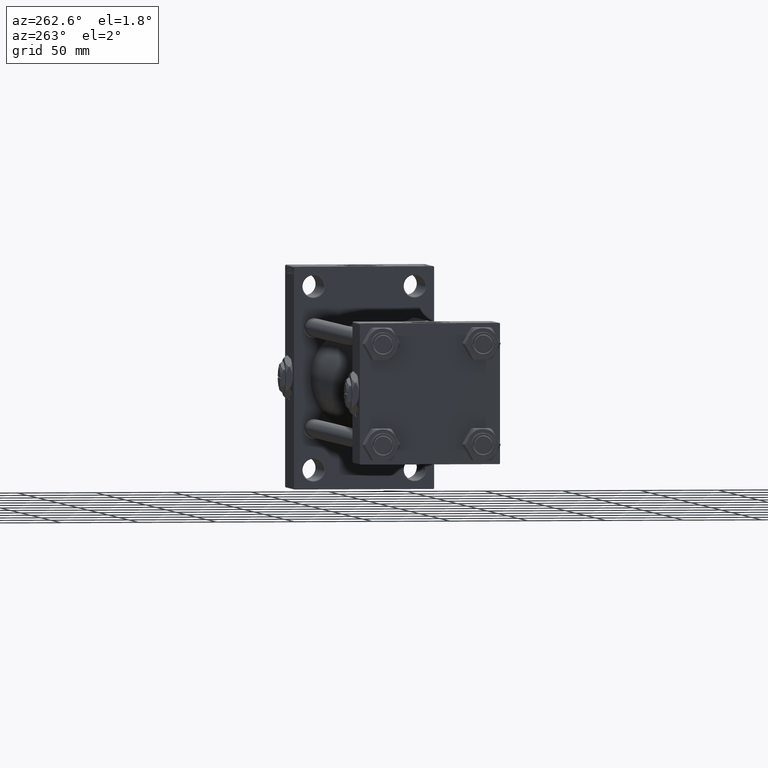
[diagram: clean part render]
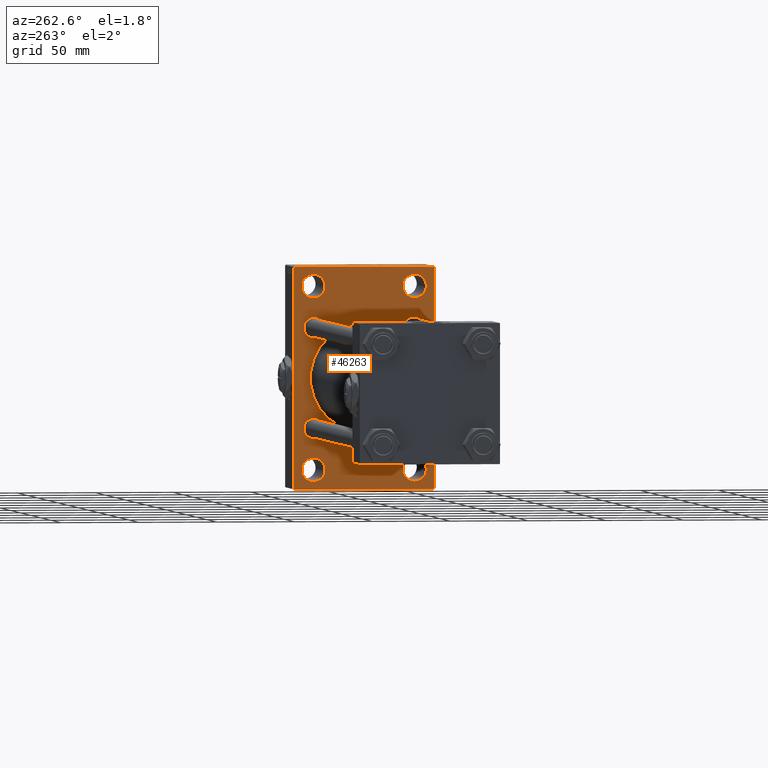
[diagram: same view with one face highlighted and labeled with its STEP entity id]
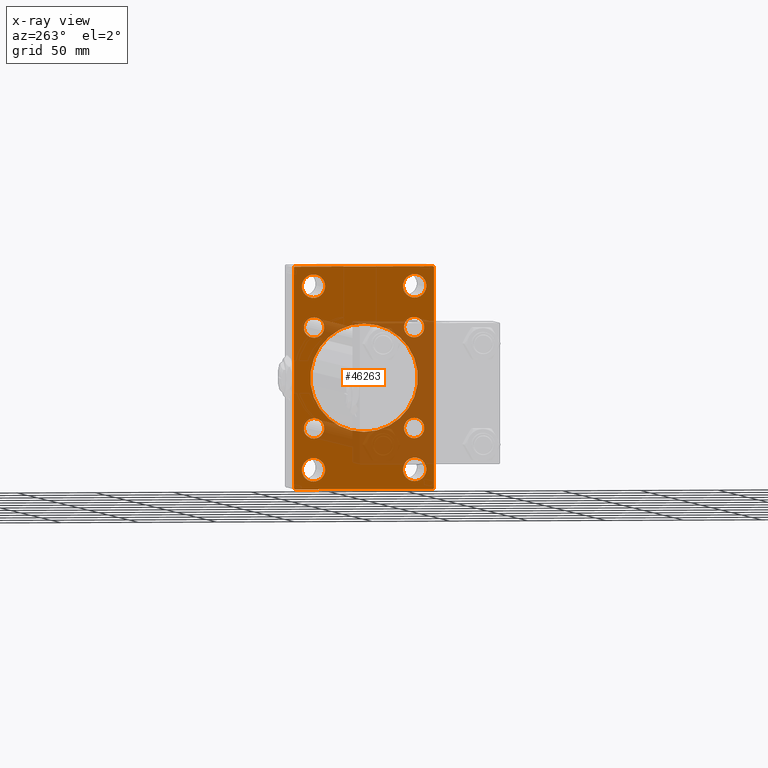
[diagram: x-ray of the same camera — body ghosted, the highlighted face saturated]
A machine part, auxiliary view. The second image highlights one B-rep face of the part: STEP entity #46263.
The next image is the same camera in x-ray: the body ghosted, the highlighted face saturated — about 31% of this face is hidden behind the body in this view.
In plain terms, the highlighted planar face has unit normal (-1, 0, 0).
Its self-contained STEP definition (entity closure, byte-faithful):
#58 = EDGE_LOOP ( 'NONE', ( #16935, #29937 ) ) ;
#163 = DIRECTION ( 'NONE',  ( 0.000000000000000000, 0.000000000000000000, 1.000000000000000000 ) ) ;
#796 = ORIENTED_EDGE ( 'NONE', *, *, #37364, .T. ) ;
#1456 = CARTESIAN_POINT ( 'NONE',  ( 325.9999999999999432, -32.50000000000000000, -58.49999999999999289 ) ) ;
#2104 = ORIENTED_EDGE ( 'NONE', *, *, #39844, .T. ) ;
#2377 = DIRECTION ( 'NONE',  ( 0.000000000000000000, 0.000000000000000000, 1.000000000000000000 ) ) ;
#2762 = DIRECTION ( 'NONE',  ( 0.000000000000000000, -1.000000000000000000, -1.541976423090495387E-16 ) ) ;
#2827 = CARTESIAN_POINT ( 'NONE',  ( 325.9999999999999432, -32.50000000000000000, 66.00000000000007105 ) ) ;
#3326 = CARTESIAN_POINT ( 'NONE',  ( 325.9999999999999432, -44.49999999999983658, 70.99999999999998579 ) ) ;
#3357 = CARTESIAN_POINT ( 'NONE',  ( 325.9999999999999432, 32.50000000000000711, 58.50000000000000711 ) ) ;
#3385 = CARTESIAN_POINT ( 'NONE',  ( 325.9999999999999432, -57.74999999999689493, -57.75000000000490985 ) ) ;
#3555 = CIRCLE ( 'NONE', #30575, 6.500000000000005329 ) ;
#3586 = CARTESIAN_POINT ( 'NONE',  ( 325.9999999999999432, 32.50000000000000711, -58.50000000000000000 ) ) ;
#3988 = VERTEX_POINT ( 'NONE', #6598 ) ;
#4949 = VERTEX_POINT ( 'NONE', #26099 ) ;
#5102 = ORIENTED_EDGE ( 'NONE', *, *, #44499, .T. ) ;
#5345 = DIRECTION ( 'NONE',  ( 0.000000000000000000, 0.000000000000000000, 1.000000000000000000 ) ) ;
#5403 = CIRCLE ( 'NONE', #28500, 6.499999999999999112 ) ;
#5925 = CARTESIAN_POINT ( 'NONE',  ( 325.9999999999999432, -32.14999999999997726, 25.65000000000000213 ) ) ;
#6038 = CARTESIAN_POINT ( 'NONE',  ( 325.9999999999999432, -32.50000000000000000, -66.00000000000005684 ) ) ;
#6145 = VECTOR ( 'NONE', #17555, 1000.000000000000000 ) ;
#6278 = DIRECTION ( 'NONE',  ( 0.000000000000000000, -4.886545002751570165E-17, -1.000000000000000000 ) ) ;
#6280 = VERTEX_POINT ( 'NONE', #26870 ) ;
#6353 = CIRCLE ( 'NONE', #44559, 6.500000000000005329 ) ;
#6380 = CARTESIAN_POINT ( 'NONE',  ( 325.9999999999999432, -2.602085213965210642E-15, 0.000000000000000000 ) ) ;
#6598 = CARTESIAN_POINT ( 'NONE',  ( 325.9999999999999432, -32.14999999999997726, -38.65000000000001990 ) ) ;
#6605 = ORIENTED_EDGE ( 'NONE', *, *, #6755, .T. ) ;
#6728 = VERTEX_POINT ( 'NONE', #7574 ) ;
#6755 = EDGE_CURVE ( 'NONE', #28301, #10204, #29021, .T. ) ;
#6758 = EDGE_CURVE ( 'NONE', #22412, #49301, #3555, .T. ) ;
#6809 = VERTEX_POINT ( 'NONE', #45455 ) ;
#6886 = FACE_BOUND ( 'NONE', #44257, .T. ) ;
#6921 = DIRECTION ( 'NONE',  ( 0.000000000000000000, 0.000000000000000000, -1.000000000000000000 ) ) ;
#7085 = VERTEX_POINT ( 'NONE', #34169 ) ;
#7260 = CARTESIAN_POINT ( 'NONE',  ( 325.9999999999999432, -32.50000000000000000, -58.49999999999999289 ) ) ;
#7391 = FACE_BOUND ( 'NONE', #41499, .T. ) ;
#7574 = CARTESIAN_POINT ( 'NONE',  ( 325.9999999999999432, 32.14999999999999147, 38.65000000000001279 ) ) ;
#7818 = CIRCLE ( 'NONE', #20575, 7.500000000000062172 ) ;
#7893 = CIRCLE ( 'NONE', #14255, 6.500000000000005329 ) ;
#8135 = VERTEX_POINT ( 'NONE', #18146 ) ;
#8691 = EDGE_CURVE ( 'NONE', #22148, #19997, #29663, .T. ) ;
#9003 = VERTEX_POINT ( 'NONE', #47829 ) ;
#9040 = LINE ( 'NONE', #47420, #10268 ) ;
#9130 = EDGE_LOOP ( 'NONE', ( #31665, #12229 ) ) ;
#9830 = DIRECTION ( 'NONE',  ( 0.000000000000000000, 0.000000000000000000, 1.000000000000000000 ) ) ;
#9871 = VERTEX_POINT ( 'NONE', #2827 ) ;
#10120 = CARTESIAN_POINT ( 'NONE',  ( 325.9999999999999432, 32.50000000000000711, -50.99999999999993605 ) ) ;
#10159 = CIRCLE ( 'NONE', #27675, 7.500000000000062172 ) ;
#10204 = VERTEX_POINT ( 'NONE', #10120 ) ;
#10232 = AXIS2_PLACEMENT_3D ( 'NONE', #45986, #33524, #26798 ) ;
#10268 = VECTOR ( 'NONE', #6278, 1000.000000000000000 ) ;
#10389 = FACE_BOUND ( 'NONE', #10787, .T. ) ;
#10479 = CARTESIAN_POINT ( 'NONE',  ( 325.9999999999999432, 45.00000000000001421, -70.99999999999998579 ) ) ;
#10718 = CARTESIAN_POINT ( 'NONE',  ( 325.9999999999999432, 45.00000000000002132, 71.00000000000000000 ) ) ;
#10787 = EDGE_LOOP ( 'NONE', ( #40670, #19987 ) ) ;
#10873 = CARTESIAN_POINT ( 'NONE',  ( 325.9999999999999432, 0.000000000000000000, 0.000000000000000000 ) ) ;
#10949 = AXIS2_PLACEMENT_3D ( 'NONE', #1456, #47060, #28841 ) ;
#11127 = FACE_BOUND ( 'NONE', #42504, .T. ) ;
#11370 = FACE_BOUND ( 'NONE', #26256, .T. ) ;
#11378 = EDGE_CURVE ( 'NONE', #10204, #28301, #35541, .T. ) ;
#11799 = DIRECTION ( 'NONE',  ( 0.000000000000000000, 0.000000000000000000, 1.000000000000000000 ) ) ;
#12229 = ORIENTED_EDGE ( 'NONE', *, *, #21224, .T. ) ;
#12460 = EDGE_CURVE ( 'NONE', #6280, #19997, #46767, .T. ) ;
#12775 = CARTESIAN_POINT ( 'NONE',  ( 325.9999999999999432, 32.50000000000000711, 50.99999999999995026 ) ) ;
#13076 = EDGE_LOOP ( 'NONE', ( #30763, #24680 ) ) ;
#13117 = EDGE_CURVE ( 'NONE', #6280, #23844, #13814, .T. ) ;
#13563 = EDGE_CURVE ( 'NONE', #4949, #22884, #28462, .T. ) ;
#13814 = LINE ( 'NONE', #17312, #6145 ) ;
#14041 = AXIS2_PLACEMENT_3D ( 'NONE', #25835, #33550, #37794 ) ;
#14255 = AXIS2_PLACEMENT_3D ( 'NONE', #19774, #15537, #11799 ) ;
#14476 = EDGE_CURVE ( 'NONE', #41160, #40427, #45994, .T. ) ;
#14551 = DIRECTION ( 'NONE',  ( 0.000000000000000000, 0.000000000000000000, 1.000000000000000000 ) ) ;
#14762 = VECTOR ( 'NONE', #2762, 1000.000000000000000 ) ;
#15277 = CARTESIAN_POINT ( 'NONE',  ( 325.9999999999999432, -32.14999999999997726, -25.65000000000000568 ) ) ;
#15537 = DIRECTION ( 'NONE',  ( 1.000000000000000000, -0.000000000000000000, 0.000000000000000000 ) ) ;
#16059 = EDGE_CURVE ( 'NONE', #6728, #16714, #26956, .T. ) ;
#16312 = VERTEX_POINT ( 'NONE', #22515 ) ;
#16562 = CARTESIAN_POINT ( 'NONE',  ( 325.9999999999999432, 32.14999999999999147, -38.65000000000001279 ) ) ;
#16714 = VERTEX_POINT ( 'NONE', #37408 ) ;
#16904 = ORIENTED_EDGE ( 'NONE', *, *, #21882, .T. ) ;
#16912 = EDGE_CURVE ( 'NONE', #3988, #41705, #42901, .T. ) ;
#16935 = ORIENTED_EDGE ( 'NONE', *, *, #30871, .T. ) ;
#17085 = AXIS2_PLACEMENT_3D ( 'NONE', #3586, #18794, #48709 ) ;
#17312 = CARTESIAN_POINT ( 'NONE',  ( 325.9999999999999432, -44.99999999999997158, 70.99999999999998579 ) ) ;
#17555 = DIRECTION ( 'NONE',  ( 0.000000000000000000, 0.000000000000000000, -1.000000000000000000 ) ) ;
#17812 = CARTESIAN_POINT ( 'NONE',  ( 325.9999999999999432, 57.74999999999808864, -57.75000000000289901 ) ) ;
#17972 = DIRECTION ( 'NONE',  ( 0.000000000000000000, 0.000000000000000000, 1.000000000000000000 ) ) ;
#18146 = CARTESIAN_POINT ( 'NONE',  ( 325.9999999999999432, 45.00000000000001421, -70.49999999999991473 ) ) ;
#18468 = EDGE_CURVE ( 'NONE', #9871, #43674, #7818, .T. ) ;
#18608 = CIRCLE ( 'NONE', #46464, 34.50000000000000000 ) ;
#18794 = DIRECTION ( 'NONE',  ( 1.000000000000000000, -0.000000000000000000, 0.000000000000000000 ) ) ;
#18935 = ORIENTED_EDGE ( 'NONE', *, *, #43905, .T. ) ;
#19036 = AXIS2_PLACEMENT_3D ( 'NONE', #47108, #28164, #43605 ) ;
#19096 = VECTOR ( 'NONE', #30000, 999.9999999999998863 ) ;
#19774 = CARTESIAN_POINT ( 'NONE',  ( 325.9999999999999432, -32.14999999999997726, 32.15000000000001279 ) ) ;
#19987 = ORIENTED_EDGE ( 'NONE', *, *, #22329, .T. ) ;
#19997 = VERTEX_POINT ( 'NONE', #3326 ) ;
#20575 = AXIS2_PLACEMENT_3D ( 'NONE', #41772, #38521, #163 ) ;
#21224 = EDGE_CURVE ( 'NONE', #22884, #4949, #36561, .T. ) ;
#21664 = VERTEX_POINT ( 'NONE', #47116 ) ;
#21787 = LINE ( 'NONE', #17812, #19096 ) ;
#21882 = EDGE_CURVE ( 'NONE', #22148, #6809, #44836, .T. ) ;
#22113 = AXIS2_PLACEMENT_3D ( 'NONE', #43902, #36175, #17972 ) ;
#22148 = VERTEX_POINT ( 'NONE', #41526 ) ;
#22329 = EDGE_CURVE ( 'NONE', #40427, #41160, #6353, .T. ) ;
#22412 = VERTEX_POINT ( 'NONE', #36748 ) ;
#22418 = EDGE_CURVE ( 'NONE', #8135, #21664, #21787, .T. ) ;
#22447 = CARTESIAN_POINT ( 'NONE',  ( 325.9999999999999432, 32.50000000000000711, -66.00000000000005684 ) ) ;
#22515 = CARTESIAN_POINT ( 'NONE',  ( 325.9999999999999432, 32.50000000000000711, 66.00000000000007105 ) ) ;
#22528 = DIRECTION ( 'NONE',  ( 1.000000000000000000, -0.000000000000000000, 0.000000000000000000 ) ) ;
#22594 = PLANE ( 'NONE',  #26312 ) ;
#22884 = VERTEX_POINT ( 'NONE', #6038 ) ;
#23088 = CARTESIAN_POINT ( 'NONE',  ( 325.9999999999999432, -57.75000000000022737, 57.74999999999942446 ) ) ;
#23121 = CARTESIAN_POINT ( 'NONE',  ( 325.9999999999999432, 32.14999999999999147, -25.64999999999999858 ) ) ;
#23240 = ORIENTED_EDGE ( 'NONE', *, *, #16912, .T. ) ;
#23844 = VERTEX_POINT ( 'NONE', #25915 ) ;
#24579 = AXIS2_PLACEMENT_3D ( 'NONE', #6380, #35813, #36785 ) ;
#24680 = ORIENTED_EDGE ( 'NONE', *, *, #27583, .T. ) ;
#24949 = CARTESIAN_POINT ( 'NONE',  ( 325.9999999999999432, 32.14999999999999147, 32.15000000000000568 ) ) ;
#25166 = EDGE_CURVE ( 'NONE', #38616, #16312, #35091, .T. ) ;
#25504 = ORIENTED_EDGE ( 'NONE', *, *, #18468, .T. ) ;
#25592 = DIRECTION ( 'NONE',  ( -1.000000000000000000, 0.000000000000000000, -0.000000000000000000 ) ) ;
#25683 = LINE ( 'NONE', #10479, #45210 ) ;
#25835 = CARTESIAN_POINT ( 'NONE',  ( 325.9999999999999432, 32.50000000000000711, -58.50000000000000000 ) ) ;
#25915 = CARTESIAN_POINT ( 'NONE',  ( 325.9999999999999432, -44.99999999999997158, -70.50000000000005684 ) ) ;
#26099 = CARTESIAN_POINT ( 'NONE',  ( 325.9999999999999432, -32.50000000000000000, -50.99999999999992184 ) ) ;
#26177 = CIRCLE ( 'NONE', #24579, 34.50000000000000000 ) ;
#26256 = EDGE_LOOP ( 'NONE', ( #47590, #6605 ) ) ;
#26312 = AXIS2_PLACEMENT_3D ( 'NONE', #10873, #25592, #30062 ) ;
#26580 = FACE_BOUND ( 'NONE', #27772, .T. ) ;
#26798 = DIRECTION ( 'NONE',  ( 0.000000000000000000, 0.000000000000000000, 1.000000000000000000 ) ) ;
#26870 = CARTESIAN_POINT ( 'NONE',  ( 325.9999999999999432, -44.99999999999997158, 70.49999999999987210 ) ) ;
#26956 = CIRCLE ( 'NONE', #10232, 6.499999999999999112 ) ;
#27367 = ORIENTED_EDGE ( 'NONE', *, *, #8691, .F. ) ;
#27583 = EDGE_CURVE ( 'NONE', #48692, #9003, #18608, .T. ) ;
#27675 = AXIS2_PLACEMENT_3D ( 'NONE', #47765, #44254, #44008 ) ;
#27772 = EDGE_LOOP ( 'NONE', ( #2104, #23240 ) ) ;
#28164 = DIRECTION ( 'NONE',  ( 1.000000000000000000, -0.000000000000000000, 0.000000000000000000 ) ) ;
#28301 = VERTEX_POINT ( 'NONE', #22447 ) ;
#28462 = CIRCLE ( 'NONE', #10949, 7.500000000000069278 ) ;
#28500 = AXIS2_PLACEMENT_3D ( 'NONE', #24949, #28697, #39917 ) ;
#28697 = DIRECTION ( 'NONE',  ( 1.000000000000000000, -0.000000000000000000, 0.000000000000000000 ) ) ;
#28758 = ORIENTED_EDGE ( 'NONE', *, *, #16059, .T. ) ;
#28841 = DIRECTION ( 'NONE',  ( 0.000000000000000000, 0.000000000000000000, 1.000000000000000000 ) ) ;
#29021 = CIRCLE ( 'NONE', #17085, 7.500000000000062172 ) ;
#29452 = CARTESIAN_POINT ( 'NONE',  ( 325.9999999999999432, 1.622946243093158675E-15, -34.50000000000000000 ) ) ;
#29663 = LINE ( 'NONE', #10718, #14762 ) ;
#29818 = FACE_BOUND ( 'NONE', #58, .T. ) ;
#29937 = ORIENTED_EDGE ( 'NONE', *, *, #25166, .T. ) ;
#30000 = DIRECTION ( 'NONE',  ( -0.000000000000000000, -0.7071067811865771047, -0.7071067811865180408 ) ) ;
#30062 = DIRECTION ( 'NONE',  ( -0.000000000000000000, 0.000000000000000000, 1.000000000000000000 ) ) ;
#30575 = AXIS2_PLACEMENT_3D ( 'NONE', #38221, #22528, #14551 ) ;
#30616 = CARTESIAN_POINT ( 'NONE',  ( 325.9999999999999432, 32.14999999999999147, -32.15000000000000568 ) ) ;
#30763 = ORIENTED_EDGE ( 'NONE', *, *, #42569, .T. ) ;
#30871 = EDGE_CURVE ( 'NONE', #16312, #38616, #44990, .T. ) ;
#31665 = ORIENTED_EDGE ( 'NONE', *, *, #13563, .T. ) ;
#31931 = AXIS2_PLACEMENT_3D ( 'NONE', #3357, #40261, #2377 ) ;
#32424 = DIRECTION ( 'NONE',  ( 0.000000000000000000, -1.000000000000000000, -1.541976423090495633E-16 ) ) ;
#32605 = VECTOR ( 'NONE', #48589, 1000.000000000000000 ) ;
#33044 = LINE ( 'NONE', #3385, #45352 ) ;
#33249 = ORIENTED_EDGE ( 'NONE', *, *, #22418, .T. ) ;
#33306 = FACE_OUTER_BOUND ( 'NONE', #37176, .T. ) ;
#33524 = DIRECTION ( 'NONE',  ( 1.000000000000000000, -0.000000000000000000, 0.000000000000000000 ) ) ;
#33550 = DIRECTION ( 'NONE',  ( 1.000000000000000000, -0.000000000000000000, 0.000000000000000000 ) ) ;
#33583 = DIRECTION ( 'NONE',  ( 1.000000000000000000, 0.000000000000000000, 0.000000000000000000 ) ) ;
#33619 = DIRECTION ( 'NONE',  ( 1.000000000000000000, -0.000000000000000000, 0.000000000000000000 ) ) ;
#33915 = DIRECTION ( 'NONE',  ( 0.000000000000000000, 0.000000000000000000, 1.000000000000000000 ) ) ;
#34024 = AXIS2_PLACEMENT_3D ( 'NONE', #30616, #33619, #45829 ) ;
#34169 = CARTESIAN_POINT ( 'NONE',  ( 325.9999999999999432, -44.49999999999994316, -71.00000000000000000 ) ) ;
#35091 = CIRCLE ( 'NONE', #31931, 7.500000000000062172 ) ;
#35541 = CIRCLE ( 'NONE', #14041, 7.500000000000062172 ) ;
#35798 = EDGE_CURVE ( 'NONE', #43674, #9871, #10159, .T. ) ;
#35813 = DIRECTION ( 'NONE',  ( 1.000000000000000000, 0.000000000000000000, 0.000000000000000000 ) ) ;
#36175 = DIRECTION ( 'NONE',  ( 1.000000000000000000, -0.000000000000000000, 0.000000000000000000 ) ) ;
#36271 = ORIENTED_EDGE ( 'NONE', *, *, #43956, .T. ) ;
#36561 = CIRCLE ( 'NONE', #43712, 7.500000000000069278 ) ;
#36748 = CARTESIAN_POINT ( 'NONE',  ( 325.9999999999999432, -32.14999999999997726, 38.65000000000002700 ) ) ;
#36785 = DIRECTION ( 'NONE',  ( 0.000000000000000000, 0.000000000000000000, -1.000000000000000000 ) ) ;
#37030 = DIRECTION ( 'NONE',  ( 0.000000000000000000, -0.7071067811865965336, 0.7071067811864985009 ) ) ;
#37176 = EDGE_LOOP ( 'NONE', ( #42552, #5102, #45935, #46301, #27367, #16904, #36271, #33249 ) ) ;
#37364 = EDGE_CURVE ( 'NONE', #16714, #6728, #5403, .T. ) ;
#37408 = CARTESIAN_POINT ( 'NONE',  ( 325.9999999999999432, 32.14999999999999147, 25.65000000000000213 ) ) ;
#37417 = DIRECTION ( 'NONE',  ( 1.000000000000000000, -0.000000000000000000, 0.000000000000000000 ) ) ;
#37794 = DIRECTION ( 'NONE',  ( 0.000000000000000000, 0.000000000000000000, 1.000000000000000000 ) ) ;
#37829 = CARTESIAN_POINT ( 'NONE',  ( 325.9999999999999432, -2.602085213965210642E-15, 0.000000000000000000 ) ) ;
#38221 = CARTESIAN_POINT ( 'NONE',  ( 325.9999999999999432, -32.14999999999997726, 32.15000000000001279 ) ) ;
#38521 = DIRECTION ( 'NONE',  ( 1.000000000000000000, -0.000000000000000000, 0.000000000000000000 ) ) ;
#38616 = VERTEX_POINT ( 'NONE', #12775 ) ;
#38898 = ORIENTED_EDGE ( 'NONE', *, *, #6758, .T. ) ;
#39238 = CARTESIAN_POINT ( 'NONE',  ( 325.9999999999999432, 32.50000000000000711, 58.50000000000000711 ) ) ;
#39485 = DIRECTION ( 'NONE',  ( 1.000000000000000000, -0.000000000000000000, 0.000000000000000000 ) ) ;
#39782 = EDGE_CURVE ( 'NONE', #21664, #7085, #25683, .T. ) ;
#39844 = EDGE_CURVE ( 'NONE', #41705, #3988, #43611, .T. ) ;
#39917 = DIRECTION ( 'NONE',  ( 0.000000000000000000, 0.000000000000000000, 1.000000000000000000 ) ) ;
#40261 = DIRECTION ( 'NONE',  ( 1.000000000000000000, -0.000000000000000000, 0.000000000000000000 ) ) ;
#40427 = VERTEX_POINT ( 'NONE', #16562 ) ;
#40670 = ORIENTED_EDGE ( 'NONE', *, *, #14476, .T. ) ;
#41160 = VERTEX_POINT ( 'NONE', #23121 ) ;
#41499 = EDGE_LOOP ( 'NONE', ( #28758, #796 ) ) ;
#41526 = CARTESIAN_POINT ( 'NONE',  ( 325.9999999999999432, 44.49999999999996447, 71.00000000000000000 ) ) ;
#41705 = VERTEX_POINT ( 'NONE', #15277 ) ;
#41772 = CARTESIAN_POINT ( 'NONE',  ( 325.9999999999999432, -32.50000000000000000, 58.50000000000000711 ) ) ;
#41825 = ORIENTED_EDGE ( 'NONE', *, *, #35798, .T. ) ;
#42504 = EDGE_LOOP ( 'NONE', ( #25504, #41825 ) ) ;
#42552 = ORIENTED_EDGE ( 'NONE', *, *, #39782, .T. ) ;
#42569 = EDGE_CURVE ( 'NONE', #9003, #48692, #26177, .T. ) ;
#42606 = AXIS2_PLACEMENT_3D ( 'NONE', #39238, #39485, #5345 ) ;
#42901 = CIRCLE ( 'NONE', #19036, 6.500000000000005329 ) ;
#43605 = DIRECTION ( 'NONE',  ( 0.000000000000000000, 0.000000000000000000, 1.000000000000000000 ) ) ;
#43611 = CIRCLE ( 'NONE', #22113, 6.500000000000005329 ) ;
#43674 = VERTEX_POINT ( 'NONE', #48706 ) ;
#43712 = AXIS2_PLACEMENT_3D ( 'NONE', #7260, #37417, #33915 ) ;
#43902 = CARTESIAN_POINT ( 'NONE',  ( 325.9999999999999432, -32.14999999999997726, -32.15000000000001279 ) ) ;
#43905 = EDGE_CURVE ( 'NONE', #49301, #22412, #7893, .T. ) ;
#43956 = EDGE_CURVE ( 'NONE', #6809, #8135, #9040, .T. ) ;
#43983 = DIRECTION ( 'NONE',  ( 1.000000000000000000, -0.000000000000000000, 0.000000000000000000 ) ) ;
#44008 = DIRECTION ( 'NONE',  ( 0.000000000000000000, 0.000000000000000000, 1.000000000000000000 ) ) ;
#44254 = DIRECTION ( 'NONE',  ( 1.000000000000000000, -0.000000000000000000, 0.000000000000000000 ) ) ;
#44257 = EDGE_LOOP ( 'NONE', ( #38898, #18935 ) ) ;
#44499 = EDGE_CURVE ( 'NONE', #7085, #23844, #33044, .T. ) ;
#44559 = AXIS2_PLACEMENT_3D ( 'NONE', #47738, #43983, #9830 ) ;
#44836 = LINE ( 'NONE', #49080, #32605 ) ;
#44990 = CIRCLE ( 'NONE', #42606, 7.500000000000062172 ) ;
#45140 = VECTOR ( 'NONE', #45773, 1000.000000000000000 ) ;
#45210 = VECTOR ( 'NONE', #32424, 1000.000000000000000 ) ;
#45274 = FACE_BOUND ( 'NONE', #13076, .T. ) ;
#45352 = VECTOR ( 'NONE', #37030, 1000.000000000000114 ) ;
#45455 = CARTESIAN_POINT ( 'NONE',  ( 325.9999999999999432, 45.00000000000002132, 70.50000000000000000 ) ) ;
#45773 = DIRECTION ( 'NONE',  ( -0.000000000000000000, 0.7071067811865426878, 0.7071067811865524577 ) ) ;
#45829 = DIRECTION ( 'NONE',  ( 0.000000000000000000, 0.000000000000000000, 1.000000000000000000 ) ) ;
#45935 = ORIENTED_EDGE ( 'NONE', *, *, #13117, .F. ) ;
#45986 = CARTESIAN_POINT ( 'NONE',  ( 325.9999999999999432, 32.14999999999999147, 32.15000000000000568 ) ) ;
#45994 = CIRCLE ( 'NONE', #34024, 6.500000000000005329 ) ;
#46263 = ADVANCED_FACE ( 'NONE', ( #11127, #49022, #11370, #29818, #6886, #7391, #10389, #26580, #45274, #33306 ), #22594, .T. ) ;
#46301 = ORIENTED_EDGE ( 'NONE', *, *, #12460, .T. ) ;
#46464 = AXIS2_PLACEMENT_3D ( 'NONE', #37829, #33583, #6921 ) ;
#46767 = LINE ( 'NONE', #23088, #45140 ) ;
#47060 = DIRECTION ( 'NONE',  ( 1.000000000000000000, -0.000000000000000000, 0.000000000000000000 ) ) ;
#47108 = CARTESIAN_POINT ( 'NONE',  ( 325.9999999999999432, -32.14999999999997726, -32.15000000000001279 ) ) ;
#47116 = CARTESIAN_POINT ( 'NONE',  ( 325.9999999999999432, 44.49999999999990052, -70.99999999999998579 ) ) ;
#47420 = CARTESIAN_POINT ( 'NONE',  ( 325.9999999999999432, 45.00000000000002132, 71.00000000000000000 ) ) ;
#47590 = ORIENTED_EDGE ( 'NONE', *, *, #11378, .T. ) ;
#47738 = CARTESIAN_POINT ( 'NONE',  ( 325.9999999999999432, 32.14999999999999147, -32.15000000000000568 ) ) ;
#47765 = CARTESIAN_POINT ( 'NONE',  ( 325.9999999999999432, -32.50000000000000000, 58.50000000000000711 ) ) ;
#47829 = CARTESIAN_POINT ( 'NONE',  ( 325.9999999999999432, -2.602085213965210642E-15, 34.50000000000000000 ) ) ;
#48589 = DIRECTION ( 'NONE',  ( 0.000000000000000000, 0.7071067811865867636, -0.7071067811865081598 ) ) ;
#48692 = VERTEX_POINT ( 'NONE', #29452 ) ;
#48706 = CARTESIAN_POINT ( 'NONE',  ( 325.9999999999999432, -32.50000000000000000, 50.99999999999995026 ) ) ;
#48709 = DIRECTION ( 'NONE',  ( 0.000000000000000000, 0.000000000000000000, 1.000000000000000000 ) ) ;
#49022 = FACE_BOUND ( 'NONE', #9130, .T. ) ;
#49080 = CARTESIAN_POINT ( 'NONE',  ( 325.9999999999999432, 57.74999999999750599, 57.75000000000390799 ) ) ;
#49301 = VERTEX_POINT ( 'NONE', #5925 ) ;